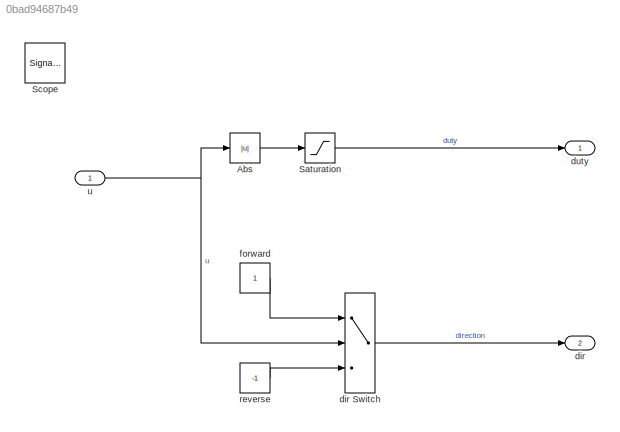
MODEL slx_0bad94687b49
KIND model
BLOCK [Abs] Abs
  SaturateOnIntegerOverflow = off
BLOCK [Saturate] Saturation
  InputPortMap = u0
  LowerLimit = 0
  Ports = [1, 1]
  UpperLimit = 1
BLOCK [SignalViewerScope] Scope
  IOType = viewer
  MaxDataPoints = 7500
  NumInputPorts = 3
  Ports = []
  RefreshTime = 0.035000
  ShowDataMarkers = off
  ShowLegends = off
  YMax = 5~5~5
  YMin = -5~-5~-5
BLOCK [Outport] dir
  IconDisplay = Port number
  Port = 2
BLOCK [Switch] dir Switch
  Criteria = u2 > Threshold
  InputSameDT = off
  SaturateOnIntegerOverflow = off
BLOCK [Outport] duty
  IconDisplay = Port number
BLOCK [Constant] forward
BLOCK [Constant] reverse
  Value = -1
BLOCK [Inport] u
  IconDisplay = Port number
LINE Abs:1 -> Saturation:1
LINE Saturation:1 -> duty:1
LINE dir Switch:1 -> dir:1
LINE forward:1 -> dir Switch:1
LINE reverse:1 -> dir Switch:3
NET u:1 -> Abs:1, dir Switch:2
note: NET lines group one-source signal fan-out (src -> all destinations, sorted); 1:1 wires keep LINE
